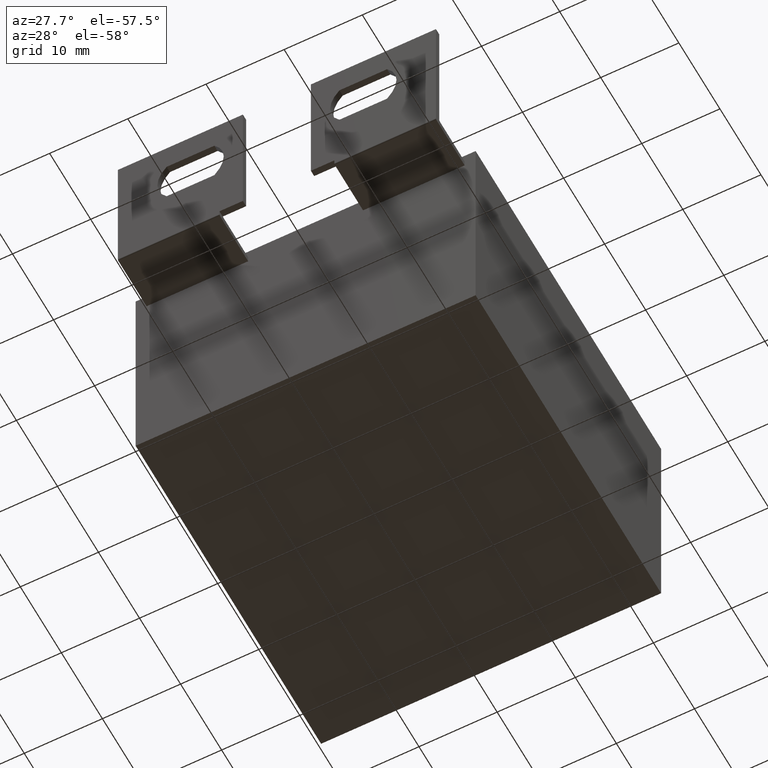
[diagram: clean part render]
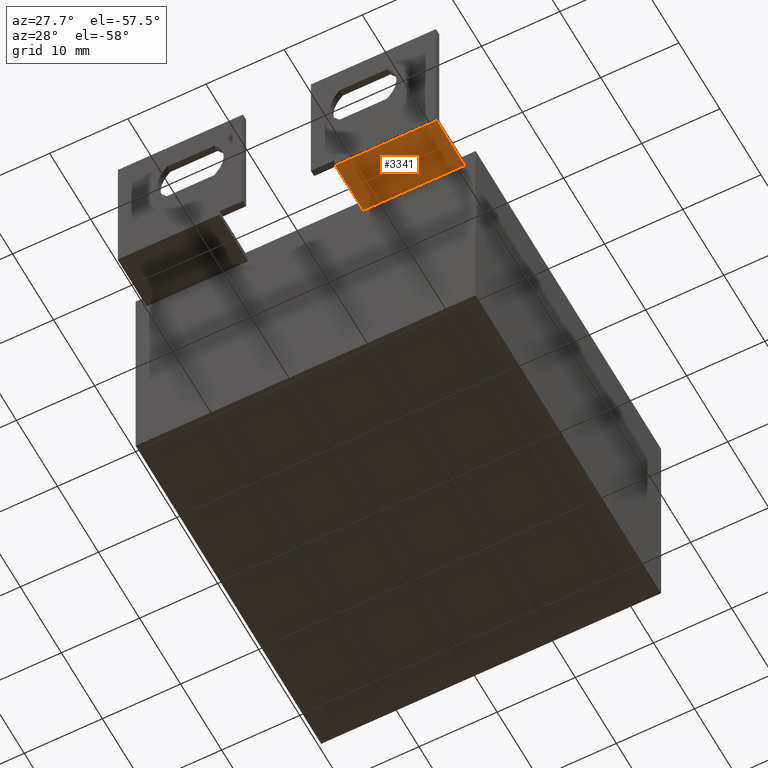
[diagram: same view with one face highlighted and labeled with its STEP entity id]
A machine part, auxiliary view. The second image highlights one B-rep face of the part: STEP entity #3341.
In plain terms, the highlighted planar face has unit normal (0, 0, -1).
Its self-contained STEP definition (entity closure, byte-faithful):
#272 = ORIENTED_EDGE ( 'NONE', *, *, #358, .F. ) ;
#358 = EDGE_CURVE ( 'NONE', #1850, #1437, #2720, .T. ) ;
#402 = CARTESIAN_POINT ( 'NONE',  ( 29.09999999999999800, -6.800000000000000700, 28.39999999999999500 ) ) ;
#414 = PLANE ( 'NONE',  #3078 ) ;
#438 = DIRECTION ( 'NONE',  ( -0.0000000000000000000, 1.000000000000000000, -0.0000000000000000000 ) ) ;
#587 = DIRECTION ( 'NONE',  ( -0.0000000000000000000, 1.000000000000000000, -0.0000000000000000000 ) ) ;
#832 = CARTESIAN_POINT ( 'NONE',  ( 42.10000000000000100, 0.0000000000000000000, 28.39999999999999900 ) ) ;
#849 = VECTOR ( 'NONE', #2973, 1000.000000000000000 ) ;
#867 = CARTESIAN_POINT ( 'NONE',  ( 29.09999999999999800, -6.800000000000000700, 28.39999999999999500 ) ) ;
#1128 = EDGE_CURVE ( 'NONE', #1437, #2523, #3413, .T. ) ;
#1437 = VERTEX_POINT ( 'NONE', #2361 ) ;
#1491 = DIRECTION ( 'NONE',  ( -1.000000000000000000, 0.0000000000000000000, -2.668805347656626700E-016 ) ) ;
#1586 = ORIENTED_EDGE ( 'NONE', *, *, #3331, .T. ) ;
#1709 = LINE ( 'NONE', #2426, #2449 ) ;
#1753 = DIRECTION ( 'NONE',  ( -1.000000000000000000, 0.0000000000000000000, -2.668805347656626700E-016 ) ) ;
#1767 = CARTESIAN_POINT ( 'NONE',  ( 42.10000000000000100, -7.000000000000000000, 28.39999999999999900 ) ) ;
#1850 = VERTEX_POINT ( 'NONE', #2798 ) ;
#1858 = EDGE_LOOP ( 'NONE', ( #272, #1586, #2152, #2824 ) ) ;
#2039 = FACE_OUTER_BOUND ( 'NONE', #1858, .T. ) ;
#2128 = CARTESIAN_POINT ( 'NONE',  ( 29.09999999999999800, 0.0000000000000000000, 28.39999999999999500 ) ) ;
#2152 = ORIENTED_EDGE ( 'NONE', *, *, #2777, .T. ) ;
#2192 = VERTEX_POINT ( 'NONE', #867 ) ;
#2290 = VECTOR ( 'NONE', #438, 1000.000000000000000 ) ;
#2361 = CARTESIAN_POINT ( 'NONE',  ( 42.10000000000000100, 0.0000000000000000000, 28.39999999999999900 ) ) ;
#2426 = CARTESIAN_POINT ( 'NONE',  ( 29.09999999999999800, -7.000000000000000000, 28.39999999999999500 ) ) ;
#2449 = VECTOR ( 'NONE', #587, 1000.000000000000000 ) ;
#2523 = VERTEX_POINT ( 'NONE', #2128 ) ;
#2720 = LINE ( 'NONE', #2883, #2290 ) ;
#2777 = EDGE_CURVE ( 'NONE', #2192, #2523, #1709, .T. ) ;
#2798 = CARTESIAN_POINT ( 'NONE',  ( 42.10000000000000100, -6.800000000000000700, 28.39999999999999900 ) ) ;
#2824 = ORIENTED_EDGE ( 'NONE', *, *, #1128, .F. ) ;
#2883 = CARTESIAN_POINT ( 'NONE',  ( 42.10000000000000100, -7.000000000000000000, 28.39999999999999900 ) ) ;
#2973 = DIRECTION ( 'NONE',  ( -1.000000000000000000, 0.0000000000000000000, -2.668805347656626700E-016 ) ) ;
#3038 = LINE ( 'NONE', #402, #3080 ) ;
#3078 = AXIS2_PLACEMENT_3D ( 'NONE', #1767, #3365, #1753 ) ;
#3080 = VECTOR ( 'NONE', #1491, 1000.000000000000000 ) ;
#3331 = EDGE_CURVE ( 'NONE', #1850, #2192, #3038, .T. ) ;
#3341 = ADVANCED_FACE ( 'NONE', ( #2039 ), #414, .T. ) ;
#3365 = DIRECTION ( 'NONE',  ( 2.668805347656626700E-016, 0.0000000000000000000, -1.000000000000000000 ) ) ;
#3413 = LINE ( 'NONE', #832, #849 ) ;